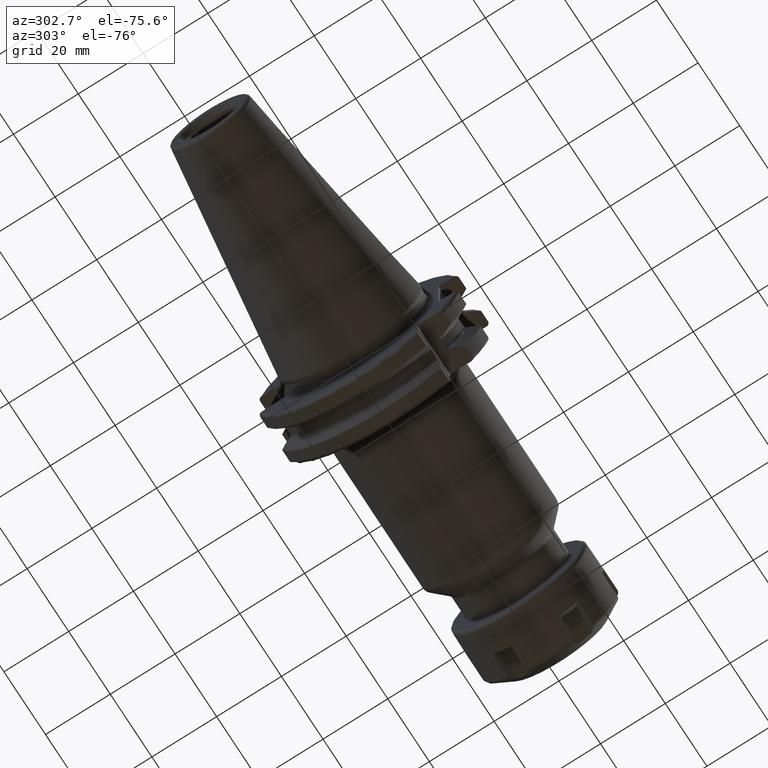
[diagram: clean part render]
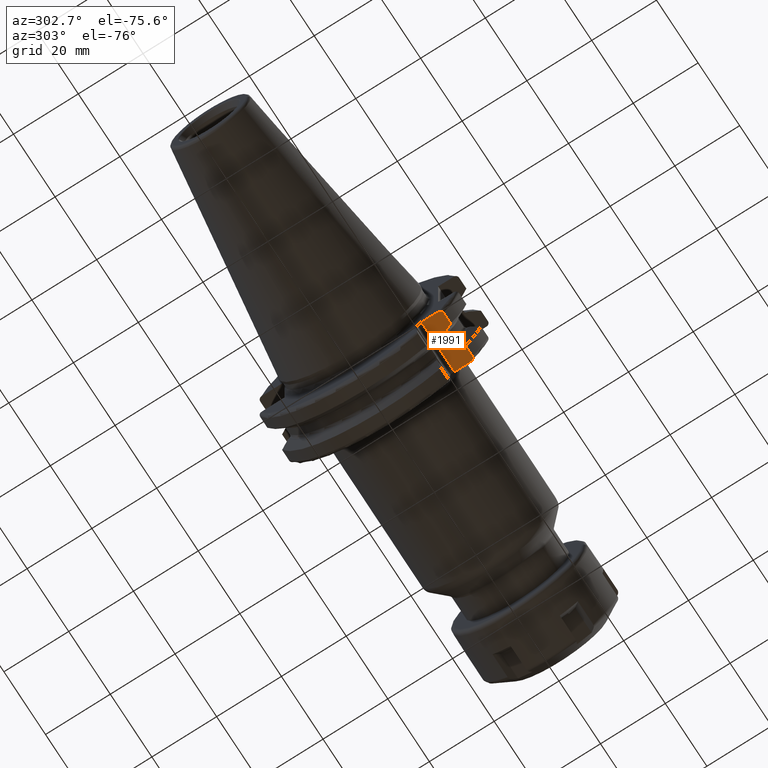
[diagram: same view with one face highlighted and labeled with its STEP entity id]
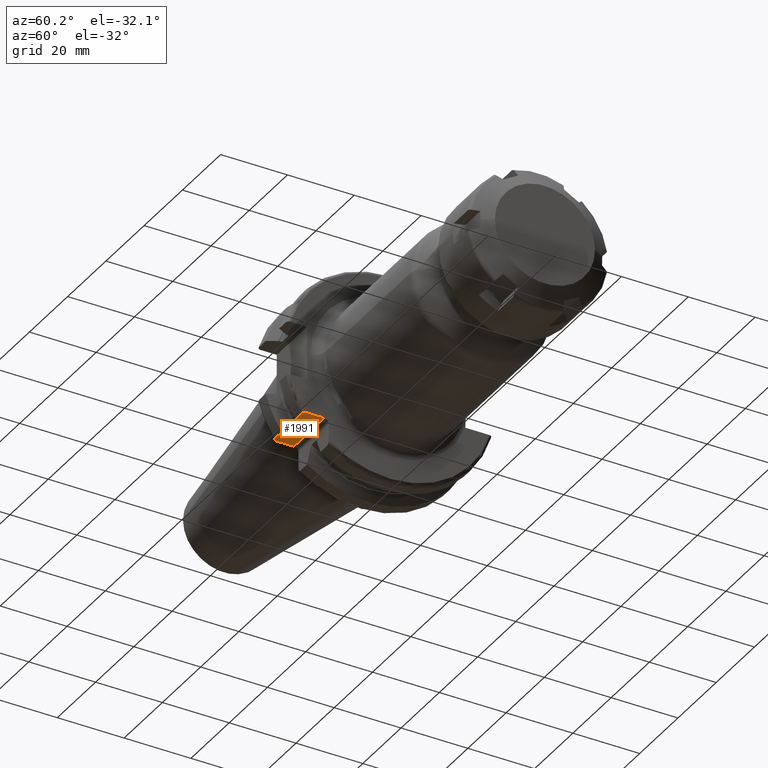
[diagram: same view with one face highlighted and labeled with its STEP entity id]
A machine part, auxiliary view. The second image highlights one B-rep face of the part: STEP entity #1991.
A second angle (auxiliary view) of the same face is appended — the face is thin or edge-on in the first view.
In plain terms, the highlighted planar face has unit normal (0, 0, 1).
Its self-contained STEP definition (entity closure, byte-faithful):
#162=DIRECTION('',(0.E0,-1.E0,0.E0));
#163=VECTOR('',#162,4.990259339464E0);
#164=CARTESIAN_POINT('',(1.905E1,-1.97E1,-1.835E1));
#165=LINE('',#164,#163);
#230=CARTESIAN_POINT('',(1.805E1,-2.592554543785E1,-1.835E1));
#231=CARTESIAN_POINT('',(1.813212338439E1,-2.592554543785E1,-1.835E1));
#232=CARTESIAN_POINT('',(1.828899791264E1,-2.590126602071E1,-1.835E1));
#233=CARTESIAN_POINT('',(1.850456061075E1,-2.580336184097E1,-1.835E1));
#234=CARTESIAN_POINT('',(1.869355777997E1,-2.565106696565E1,-1.835E1));
#235=CARTESIAN_POINT('',(1.884977948421E1,-2.545153147245E1,-1.835E1));
#236=CARTESIAN_POINT('',(1.896635606524E1,-2.521284780512E1,-1.835E1));
#237=CARTESIAN_POINT('',(1.903551041118E1,-2.495187183939E1,-1.835E1));
#238=CARTESIAN_POINT('',(1.905E1,-2.477824975790E1,-1.835E1));
#239=CARTESIAN_POINT('',(1.905E1,-2.469025933946E1,-1.835E1));
#281=DIRECTION('',(1.E0,0.E0,0.E0));
#282=VECTOR('',#281,3.445946479578E0);
#283=CARTESIAN_POINT('',(4.2E0,-2.592554543785E1,-1.835E1));
#284=LINE('',#283,#282);
#294=DIRECTION('',(1.E0,0.E0,0.E0));
#295=VECTOR('',#294,3.345946479578E0);
#296=CARTESIAN_POINT('',(1.470405352042E1,-2.592554543785E1,-1.835E1));
#297=LINE('',#296,#295);
#346=CARTESIAN_POINT('',(3.2E0,-2.469025933946E1,-1.835E1));
#347=CARTESIAN_POINT('',(3.2E0,-2.477814790224E1,-1.835E1));
#348=CARTESIAN_POINT('',(3.214453176838E0,-2.495164598407E1,-1.835E1));
#349=CARTESIAN_POINT('',(3.283586130488E0,-2.521272246670E1,-1.835E1));
#350=CARTESIAN_POINT('',(3.400262869836E0,-2.545165302319E1,-1.835E1));
#351=CARTESIAN_POINT('',(3.556766347956E0,-2.565140571383E1,-1.835E1));
#352=CARTESIAN_POINT('',(3.745700802454E0,-2.580351551775E1,-1.835E1));
#353=CARTESIAN_POINT('',(3.961315299011E0,-2.590135331215E1,-1.835E1));
#354=CARTESIAN_POINT('',(4.118001888193E0,-2.592554543785E1,-1.835E1));
#355=CARTESIAN_POINT('',(4.2E0,-2.592554543785E1,-1.835E1));
#357=DIRECTION('',(0.E0,-1.E0,0.E0));
#358=VECTOR('',#357,4.990259339464E0);
#359=CARTESIAN_POINT('',(3.2E0,-1.97E1,-1.835E1));
#360=LINE('',#359,#358);
#408=DIRECTION('',(-1.E0,0.E0,0.E0));
#409=VECTOR('',#408,1.585E1);
#410=CARTESIAN_POINT('',(1.905E1,-1.97E1,-1.835E1));
#411=LINE('',#410,#409);
#452=CARTESIAN_POINT('',(1.470405352042E1,-2.592554543785E1,-1.835E1));
#453=CARTESIAN_POINT('',(1.450926568778E1,-2.551220373088E1,-1.835E1));
#454=CARTESIAN_POINT('',(1.412985869107E1,-2.470049176917E1,-1.835E1));
#455=CARTESIAN_POINT('',(1.359156228628E1,-2.352887013532E1,-1.835E1));
#456=CARTESIAN_POINT('',(1.325223804211E1,-2.277653815910E1,-1.835E1));
#457=CARTESIAN_POINT('',(1.30875E1,-2.240773613162E1,-1.835E1));
#494=DIRECTION('',(0.E0,-1.E0,0.E0));
#495=VECTOR('',#494,2.754068371193E-1);
#496=CARTESIAN_POINT('',(1.30875E1,-2.213232929450E1,-1.835E1));
#497=LINE('',#496,#495);
#733=DIRECTION('',(0.E0,-1.E0,0.E0));
#734=VECTOR('',#733,2.754068371193E-1);
#735=CARTESIAN_POINT('',(9.2625E0,-2.213232929450E1,-1.835E1));
#736=LINE('',#735,#734);
#921=CARTESIAN_POINT('',(7.645946479578E0,-2.592554543785E1,-1.835E1));
#922=CARTESIAN_POINT('',(7.840734312224E0,-2.551220373088E1,-1.835E1));
#923=CARTESIAN_POINT('',(8.220141308932E0,-2.470049176917E1,-1.835E1));
#924=CARTESIAN_POINT('',(8.758437713718E0,-2.352887013532E1,-1.835E1));
#925=CARTESIAN_POINT('',(9.097761957890E0,-2.277653815910E1,-1.835E1));
#926=CARTESIAN_POINT('',(9.2625E0,-2.240773613162E1,-1.835E1));
#970=CARTESIAN_POINT('',(1.23375E1,-2.114893614346E1,-1.835E1));
#971=CARTESIAN_POINT('',(1.239799666480E1,-2.114893614346E1,-1.835E1));
#972=CARTESIAN_POINT('',(1.251396986535E1,-2.116785152132E1,-1.835E1));
#973=CARTESIAN_POINT('',(1.267556142957E1,-2.124601456532E1,-1.835E1));
#974=CARTESIAN_POINT('',(1.281688441878E1,-2.136713991448E1,-1.835E1));
#975=CARTESIAN_POINT('',(1.293475132222E1,-2.152625151907E1,-1.835E1));
#976=CARTESIAN_POINT('',(1.302308783904E1,-2.171592050258E1,-1.835E1));
#977=CARTESIAN_POINT('',(1.307623863613E1,-2.192395648237E1,-1.835E1));
#978=CARTESIAN_POINT('',(1.30875E1,-2.206223673534E1,-1.835E1));
#979=CARTESIAN_POINT('',(1.30875E1,-2.213232929450E1,-1.835E1));
#1003=DIRECTION('',(1.E0,0.E0,0.E0));
#1004=VECTOR('',#1003,2.325E0);
#1005=CARTESIAN_POINT('',(1.00125E1,-2.114893614346E1,-1.835E1));
#1006=LINE('',#1005,#1004);
#1050=CARTESIAN_POINT('',(9.2625E0,-2.213232929450E1,-1.835E1));
#1051=CARTESIAN_POINT('',(9.2625E0,-2.206205010258E1,-1.835E1));
#1052=CARTESIAN_POINT('',(9.273824296384E0,-2.192350268305E1,-1.835E1));
#1053=CARTESIAN_POINT('',(9.327086888097E0,-2.171543492369E1,-1.835E1));
#1054=CARTESIAN_POINT('',(9.415447479285E0,-2.152595261083E1,-1.835E1));
#1055=CARTESIAN_POINT('',(9.533154189828E0,-2.136711562859E1,-1.835E1));
#1056=CARTESIAN_POINT('',(9.674480633358E0,-2.124598357406E1,-1.835E1));
#1057=CARTESIAN_POINT('',(9.836053957432E0,-2.116784781107E1,-1.835E1));
#1058=CARTESIAN_POINT('',(9.952012380721E0,-2.114893614346E1,-1.835E1));
#1059=CARTESIAN_POINT('',(1.00125E1,-2.114893614346E1,-1.835E1));
#1376=CARTESIAN_POINT('',(9.2625E0,-2.213232929450E1,-1.835E1));
#1377=CARTESIAN_POINT('',(9.2625E0,-2.240773613162E1,-1.835E1));
#1378=VERTEX_POINT('',#1376);
#1379=VERTEX_POINT('',#1377);
#1404=CARTESIAN_POINT('',(1.30875E1,-2.213232929450E1,-1.835E1));
#1405=CARTESIAN_POINT('',(1.30875E1,-2.240773613162E1,-1.835E1));
#1406=VERTEX_POINT('',#1404);
#1407=VERTEX_POINT('',#1405);
#1477=CARTESIAN_POINT('',(1.470405352042E1,-2.592554543785E1,-1.835E1));
#1478=VERTEX_POINT('',#1477);
#1479=CARTESIAN_POINT('',(7.645946479578E0,-2.592554543785E1,-1.835E1));
#1480=VERTEX_POINT('',#1479);
#1489=CARTESIAN_POINT('',(1.905E1,-1.97E1,-1.835E1));
#1490=CARTESIAN_POINT('',(1.905E1,-2.469025933946E1,-1.835E1));
#1491=VERTEX_POINT('',#1489);
#1492=VERTEX_POINT('',#1490);
#1495=CARTESIAN_POINT('',(3.2E0,-1.97E1,-1.835E1));
#1496=CARTESIAN_POINT('',(3.2E0,-2.469025933946E1,-1.835E1));
#1497=VERTEX_POINT('',#1495);
#1498=VERTEX_POINT('',#1496);
#1519=VERTEX_POINT('',#1059);
#1520=CARTESIAN_POINT('',(1.23375E1,-2.114893614346E1,-1.835E1));
#1521=VERTEX_POINT('',#1520);
#1524=CARTESIAN_POINT('',(4.2E0,-2.592554543785E1,-1.835E1));
#1525=VERTEX_POINT('',#1524);
#1526=CARTESIAN_POINT('',(1.805E1,-2.592554543785E1,-1.835E1));
#1527=VERTEX_POINT('',#1526);
#1962=CARTESIAN_POINT('',(1.905E1,-1.835E1,-1.835E1));
#1963=DIRECTION('',(0.E0,0.E0,1.E0));
#1964=DIRECTION('',(0.E0,-1.E0,0.E0));
#1965=AXIS2_PLACEMENT_3D('',#1962,#1963,#1964);
#1966=PLANE('',#1965);
#1967=ORIENTED_EDGE('',*,*,#1793,.F.);
#1969=ORIENTED_EDGE('',*,*,#1968,.T.);
#1970=ORIENTED_EDGE('',*,*,#1935,.T.);
#1971=ORIENTED_EDGE('',*,*,#1923,.T.);
#1972=ORIENTED_EDGE('',*,*,#1879,.T.);
#1974=ORIENTED_EDGE('',*,*,#1973,.T.);
#1976=ORIENTED_EDGE('',*,*,#1975,.F.);
#1978=ORIENTED_EDGE('',*,*,#1977,.T.);
#1980=ORIENTED_EDGE('',*,*,#1979,.T.);
#1982=ORIENTED_EDGE('',*,*,#1981,.T.);
#1984=ORIENTED_EDGE('',*,*,#1983,.T.);
#1986=ORIENTED_EDGE('',*,*,#1985,.F.);
#1987=ORIENTED_EDGE('',*,*,#1894,.T.);
#1988=ORIENTED_EDGE('',*,*,#1834,.T.);
#1989=EDGE_LOOP('',(#1967,#1969,#1970,#1971,#1972,#1974,#1976,#1978,#1980,#1982,
#1984,#1986,#1987,#1988));
#1990=FACE_OUTER_BOUND('',#1989,.F.);
#1991=ADVANCED_FACE('',(#1990),#1966,.F.);
#240=B_SPLINE_CURVE_WITH_KNOTS('',3,(#230,#231,#232,#233,#234,#235,#236,#237,
#238,#239),.UNSPECIFIED.,.F.,.F.,(4,1,1,1,1,1,1,4),(0.E0,1.428571428571E-1,
2.857142857143E-1,4.285714285714E-1,5.714285714286E-1,7.142857142857E-1,
8.571428571429E-1,1.E0),.UNSPECIFIED.);
#356=B_SPLINE_CURVE_WITH_KNOTS('',3,(#346,#347,#348,#349,#350,#351,#352,#353,
#354,#355),.UNSPECIFIED.,.F.,.F.,(4,1,1,1,1,1,1,4),(0.E0,1.428571428571E-1,
2.857142857143E-1,4.285714285714E-1,5.714285714286E-1,7.142857142857E-1,
8.571428571429E-1,1.E0),.UNSPECIFIED.);
#458=B_SPLINE_CURVE_WITH_KNOTS('',3,(#452,#453,#454,#455,#456,#457),
.UNSPECIFIED.,.F.,.F.,(4,1,1,4),(0.E0,3.333333333333E-1,6.666666666667E-1,1.E0),
.UNSPECIFIED.);
#927=B_SPLINE_CURVE_WITH_KNOTS('',3,(#921,#922,#923,#924,#925,#926),
.UNSPECIFIED.,.F.,.F.,(4,1,1,4),(0.E0,3.333333333333E-1,6.666666666667E-1,1.E0),
.UNSPECIFIED.);
#980=B_SPLINE_CURVE_WITH_KNOTS('',3,(#970,#971,#972,#973,#974,#975,#976,#977,
#978,#979),.UNSPECIFIED.,.F.,.F.,(4,1,1,1,1,1,1,4),(0.E0,1.428571428571E-1,
2.857142857143E-1,4.285714285714E-1,5.714285714286E-1,7.142857142857E-1,
8.571428571429E-1,1.E0),.UNSPECIFIED.);
#1060=B_SPLINE_CURVE_WITH_KNOTS('',3,(#1050,#1051,#1052,#1053,#1054,#1055,#1056,
#1057,#1058,#1059),.UNSPECIFIED.,.F.,.F.,(4,1,1,1,1,1,1,4),(0.E0,
1.428571428571E-1,2.857142857143E-1,4.285714285714E-1,5.714285714286E-1,
7.142857142857E-1,8.571428571429E-1,1.E0),.UNSPECIFIED.);
#1793=EDGE_CURVE('',#1491,#1492,#165,.T.);
#1834=EDGE_CURVE('',#1527,#1492,#240,.T.);
#1879=EDGE_CURVE('',#1525,#1480,#284,.T.);
#1894=EDGE_CURVE('',#1478,#1527,#297,.T.);
#1923=EDGE_CURVE('',#1498,#1525,#356,.T.);
#1935=EDGE_CURVE('',#1497,#1498,#360,.T.);
#1968=EDGE_CURVE('',#1491,#1497,#411,.T.);
#1973=EDGE_CURVE('',#1480,#1379,#927,.T.);
#1975=EDGE_CURVE('',#1378,#1379,#736,.T.);
#1977=EDGE_CURVE('',#1378,#1519,#1060,.T.);
#1979=EDGE_CURVE('',#1519,#1521,#1006,.T.);
#1981=EDGE_CURVE('',#1521,#1406,#980,.T.);
#1983=EDGE_CURVE('',#1406,#1407,#497,.T.);
#1985=EDGE_CURVE('',#1478,#1407,#458,.T.);